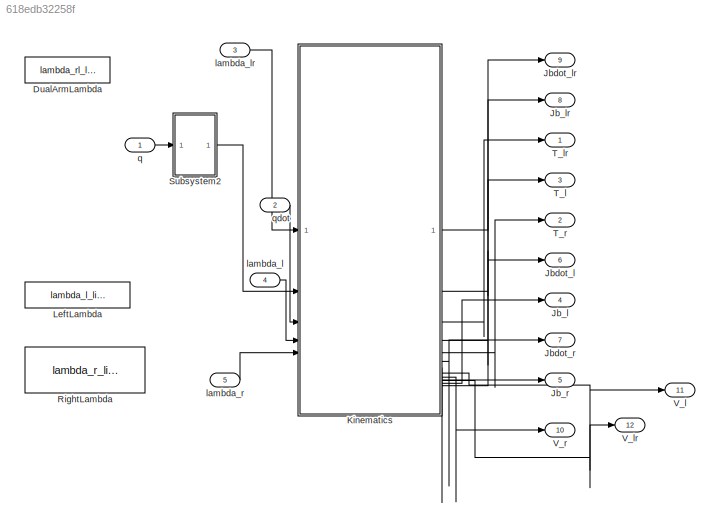
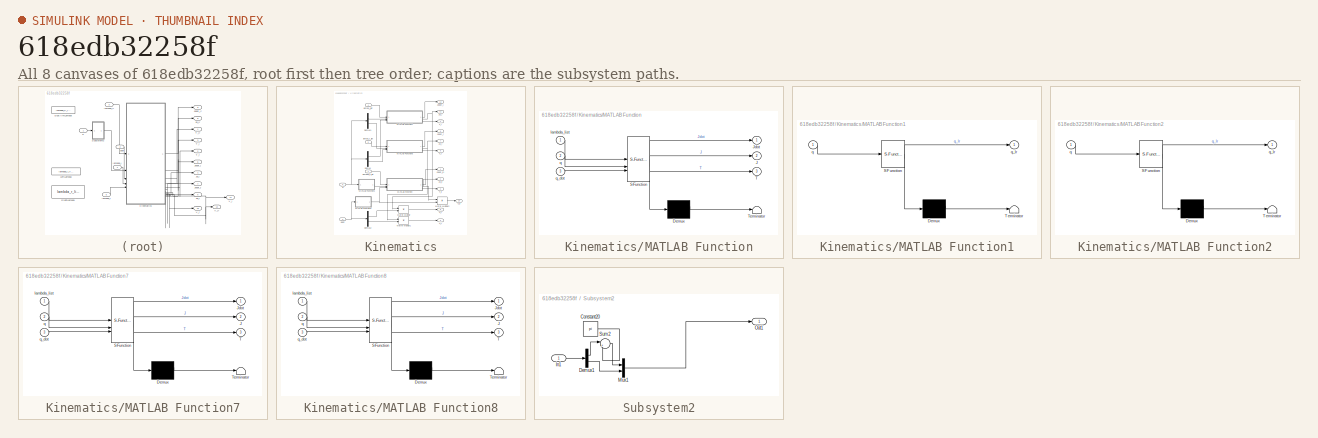
[diagram: thumbnail index - all 8 canvases of the model, root first then tree order]
MODEL slx_618edb32258f
KIND model
CONFIG AbsTol = auto
CONFIG EnableMultiTasking = off
CONFIG FixedStep = 0.001
CONFIG MaxStep = auto
CONFIG MinStep = auto
CONFIG RelTol = 1e-3
CONFIG SampleTimeConstraint = Unconstrained
CONFIG SolverName = FixedStepDiscrete
CONFIG StartTime = 0.0
CONFIG StopTime = Inf
WORKSPACE source: mxarray member
WORKSPACE robot: robotics.RigidBodyTree (value not decoded)
BLOCK [Constant] DualArmLambda
  Commented = on
  Value = lambda_rl_list
BLOCK [Outport] Jb_l
  Port = 4
BLOCK [Outport] Jb_lr
  Port = 8
BLOCK [Outport] Jb_r
  Port = 5
BLOCK [Outport] Jbdot_l
  Port = 6
BLOCK [Outport] Jbdot_lr
  Port = 9
BLOCK [Outport] Jbdot_r
  Port = 7
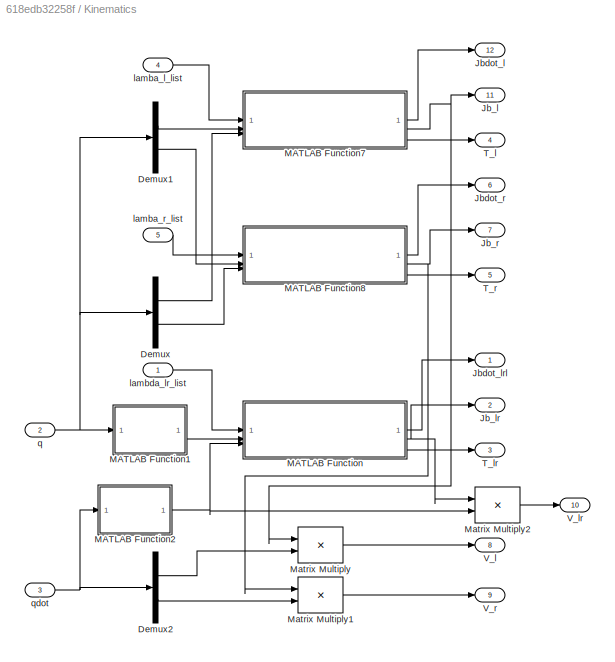
BLOCK [SubSystem] Kinematics
BLOCK [Demux] Kinematics/Demux
  Outputs = 2
BLOCK [Demux] Kinematics/Demux1
  Outputs = 2
BLOCK [Demux] Kinematics/Demux2
  Outputs = 2
BLOCK [Outport] Kinematics/Jb_l
  Port = 11
BLOCK [Outport] Kinematics/Jb_lr
  Port = 2
BLOCK [Outport] Kinematics/Jb_r
  Port = 7
BLOCK [Outport] Kinematics/Jbdot_l
  Port = 12
BLOCK [Outport] Kinematics/Jbdot_lrl
BLOCK [Outport] Kinematics/Jbdot_r
  Port = 6
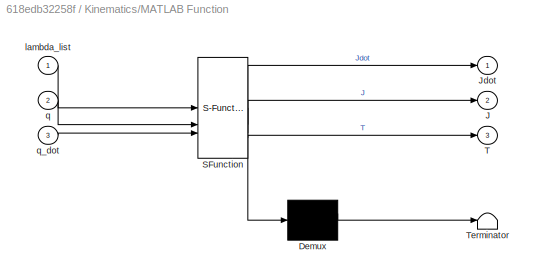
BLOCK [SubSystem] Kinematics/MATLAB Function
  ErrorFcn = Stateflow.Translate.translate
  PermitHierarchicalResolution = ExplicitOnly
  SFBlockType = MATLAB Function
  TreatAsAtomicUnit = on
BLOCK [Demux] Kinematics/MATLAB Function/ Demux 
  Outputs = 1
BLOCK [S-Function] Kinematics/MATLAB Function/ SFunction 
  EnableBusSupport = on
  FunctionName = sf_sfun
  PortCounts = [3 4]
  SFcnIsStateOwnerBlock = off
  SFunctionDeploymentMode = off
  Tag = Stateflow S-Function 2
BLOCK [Terminator] Kinematics/MATLAB Function/ Terminator 
BLOCK [Outport] Kinematics/MATLAB Function/J
  Port = 2
BLOCK [Outport] Kinematics/MATLAB Function/Jdot
BLOCK [Outport] Kinematics/MATLAB Function/T
  Port = 3
BLOCK [Inport] Kinematics/MATLAB Function/lambda_list
BLOCK [Inport] Kinematics/MATLAB Function/q
  Port = 2
BLOCK [Inport] Kinematics/MATLAB Function/q_dot
  Port = 3
BLOCK [SubSystem] Kinematics/MATLAB Function1
  ErrorFcn = Stateflow.Translate.translate
  PermitHierarchicalResolution = ExplicitOnly
  SFBlockType = MATLAB Function
  TreatAsAtomicUnit = on
BLOCK [Demux] Kinematics/MATLAB Function1/ Demux 
  Outputs = 1
BLOCK [S-Function] Kinematics/MATLAB Function1/ SFunction 
  EnableBusSupport = on
  FunctionName = sf_sfun
  PortCounts = [1 2]
  SFcnIsStateOwnerBlock = off
  SFunctionDeploymentMode = off
  Tag = Stateflow S-Function 1
BLOCK [Terminator] Kinematics/MATLAB Function1/ Terminator 
BLOCK [Inport] Kinematics/MATLAB Function1/q
BLOCK [Outport] Kinematics/MATLAB Function1/q_lr
BLOCK [SubSystem] Kinematics/MATLAB Function2
  ErrorFcn = Stateflow.Translate.translate
  PermitHierarchicalResolution = ExplicitOnly
  SFBlockType = MATLAB Function
  TreatAsAtomicUnit = on
BLOCK [Demux] Kinematics/MATLAB Function2/ Demux 
  Outputs = 1
BLOCK [S-Function] Kinematics/MATLAB Function2/ SFunction 
  EnableBusSupport = on
  FunctionName = sf_sfun
  PortCounts = [1 2]
  SFcnIsStateOwnerBlock = off
  SFunctionDeploymentMode = off
  Tag = Stateflow S-Function 3
BLOCK [Terminator] Kinematics/MATLAB Function2/ Terminator 
BLOCK [Inport] Kinematics/MATLAB Function2/q
BLOCK [Outport] Kinematics/MATLAB Function2/q_lr
BLOCK [SubSystem] Kinematics/MATLAB Function7
  ErrorFcn = Stateflow.Translate.translate
  PermitHierarchicalResolution = ExplicitOnly
  SFBlockType = MATLAB Function
  TreatAsAtomicUnit = on
BLOCK [Demux] Kinematics/MATLAB Function7/ Demux 
  Outputs = 1
BLOCK [S-Function] Kinematics/MATLAB Function7/ SFunction 
  EnableBusSupport = on
  FunctionName = sf_sfun
  PortCounts = [3 4]
  SFcnIsStateOwnerBlock = off
  SFunctionDeploymentMode = off
  Tag = Stateflow S-Function 11
BLOCK [Terminator] Kinematics/MATLAB Function7/ Terminator 
BLOCK [Outport] Kinematics/MATLAB Function7/J
  Port = 2
BLOCK [Outport] Kinematics/MATLAB Function7/Jdot
BLOCK [Outport] Kinematics/MATLAB Function7/T
  Port = 3
BLOCK [Inport] Kinematics/MATLAB Function7/lambda_list
BLOCK [Inport] Kinematics/MATLAB Function7/q
  Port = 2
BLOCK [Inport] Kinematics/MATLAB Function7/q_dot
  Port = 3
BLOCK [SubSystem] Kinematics/MATLAB Function8
  ErrorFcn = Stateflow.Translate.translate
  PermitHierarchicalResolution = ExplicitOnly
  SFBlockType = MATLAB Function
  TreatAsAtomicUnit = on
BLOCK [Demux] Kinematics/MATLAB Function8/ Demux 
  Outputs = 1
BLOCK [S-Function] Kinematics/MATLAB Function8/ SFunction 
  EnableBusSupport = on
  FunctionName = sf_sfun
  PortCounts = [3 4]
  SFcnIsStateOwnerBlock = off
  SFunctionDeploymentMode = off
  Tag = Stateflow S-Function 12
BLOCK [Terminator] Kinematics/MATLAB Function8/ Terminator 
BLOCK [Outport] Kinematics/MATLAB Function8/J
  Port = 2
BLOCK [Outport] Kinematics/MATLAB Function8/Jdot
BLOCK [Outport] Kinematics/MATLAB Function8/T
  Port = 3
BLOCK [Inport] Kinematics/MATLAB Function8/lambda_list
BLOCK [Inport] Kinematics/MATLAB Function8/q
  Port = 2
BLOCK [Inport] Kinematics/MATLAB Function8/q_dot
  Port = 3
BLOCK [Product] Kinematics/Matrix Multiply
  Multiplication = Matrix(*)
BLOCK [Product] Kinematics/Matrix Multiply1
  Multiplication = Matrix(*)
BLOCK [Product] Kinematics/Matrix Multiply2
  Multiplication = Matrix(*)
BLOCK [Outport] Kinematics/T_l
  Port = 4
BLOCK [Outport] Kinematics/T_lr
  Port = 3
BLOCK [Outport] Kinematics/T_r
  Port = 5
BLOCK [Outport] Kinematics/V_l
  Port = 8
BLOCK [Outport] Kinematics/V_lr
  Port = 10
BLOCK [Outport] Kinematics/V_r
  Port = 9
BLOCK [Inport] Kinematics/lamba_l_list
  Port = 4
BLOCK [Inport] Kinematics/lamba_r_list
  Port = 5
BLOCK [Inport] Kinematics/lambda_lr_list
BLOCK [Inport] Kinematics/q
  Port = 2
BLOCK [Inport] Kinematics/qdot
  Port = 3
BLOCK [Constant] LeftLambda
  Commented = on
  Value = lambda_l_list
BLOCK [Constant] RightLambda
  Commented = on
  Value = lambda_r_list
BLOCK [SubSystem] Subsystem2
BLOCK [Constant] Subsystem2/Constant20
  Value = pi
BLOCK [Demux] Subsystem2/Demux1
  Outputs = [1,11]
BLOCK [Inport] Subsystem2/In1
BLOCK [Mux] Subsystem2/Mux1
  DisplayOption = bar
  Inputs = [1,11]
BLOCK [Outport] Subsystem2/Out1
BLOCK [Sum] Subsystem2/Sum2
  Inputs = |++
BLOCK [Outport] T_l
  Port = 3
BLOCK [Outport] T_lr
BLOCK [Outport] T_r
  Port = 2
BLOCK [Outport] V_l
  Port = 11
BLOCK [Outport] V_lr
  Port = 12
BLOCK [Outport] V_r
  Port = 10
BLOCK [Inport] lambda_l
  Port = 4
  PortDimensions = [6,7]
BLOCK [Inport] lambda_lr
  Port = 3
  PortDimensions = [6,13]
BLOCK [Inport] lambda_r
  Port = 5
  PortDimensions = [6,7]
BLOCK [Inport] q
  PortDimensions = 12
BLOCK [Inport] qdot
  Port = 2
  PortDimensions = 12
LINE Kinematics/Demux1:1 -> Kinematics/MATLAB Function7:2
LINE Kinematics/Demux1:2 -> Kinematics/MATLAB Function8:2
LINE Kinematics/Demux2:1 -> Kinematics/Matrix Multiply:2
LINE Kinematics/Demux2:2 -> Kinematics/Matrix Multiply1:2
LINE Kinematics/Demux:1 -> Kinematics/MATLAB Function7:3
LINE Kinematics/Demux:2 -> Kinematics/MATLAB Function8:3
LINE Kinematics/MATLAB Function1:1 -> Kinematics/MATLAB Function:2
NET Kinematics/MATLAB Function2:1 -> Kinematics/MATLAB Function:3, Kinematics/Matrix Multiply2:2
LINE Kinematics/MATLAB Function7:1 -> Kinematics/Jbdot_l:1
NET Kinematics/MATLAB Function7:2 -> Kinematics/Jb_l:1, Kinematics/Matrix Multiply:1
LINE Kinematics/MATLAB Function7:3 -> Kinematics/T_l:1
LINE Kinematics/MATLAB Function8:1 -> Kinematics/Jbdot_r:1
NET Kinematics/MATLAB Function8:2 -> Kinematics/Jb_r:1, Kinematics/Matrix Multiply1:1
LINE Kinematics/MATLAB Function8:3 -> Kinematics/T_r:1
LINE Kinematics/MATLAB Function:1 -> Kinematics/Jbdot_lrl:1
NET Kinematics/MATLAB Function:2 -> Kinematics/Jb_lr:1, Kinematics/Matrix Multiply2:1
LINE Kinematics/MATLAB Function:3 -> Kinematics/T_lr:1
LINE Kinematics/Matrix Multiply1:1 -> Kinematics/V_r:1
LINE Kinematics/Matrix Multiply2:1 -> Kinematics/V_lr:1
LINE Kinematics/Matrix Multiply:1 -> Kinematics/V_l:1
LINE Kinematics/lamba_l_list:1 -> Kinematics/MATLAB Function7:1
LINE Kinematics/lamba_r_list:1 -> Kinematics/MATLAB Function8:1
LINE Kinematics/lambda_lr_list:1 -> Kinematics/MATLAB Function:1
NET Kinematics/q:1 -> Kinematics/Demux1:1, Kinematics/Demux:1, Kinematics/MATLAB Function1:1
NET Kinematics/qdot:1 -> Kinematics/Demux2:1, Kinematics/MATLAB Function2:1
LINE Kinematics:1 -> Jbdot_lr:1
LINE Kinematics:10 -> V_lr:1
LINE Kinematics:11 -> Jb_l:1
LINE Kinematics:12 -> Jbdot_l:1
LINE Kinematics:2 -> Jb_lr:1
LINE Kinematics:3 -> T_lr:1
LINE Kinematics:4 -> T_l:1
LINE Kinematics:5 -> T_r:1
LINE Kinematics:6 -> Jbdot_r:1
LINE Kinematics:7 -> Jb_r:1
LINE Kinematics:8 -> V_l:1
LINE Kinematics:9 -> V_r:1
LINE Subsystem2/Constant20:1 -> Subsystem2/Sum2:2
LINE Subsystem2/Demux1:1 -> Subsystem2/Sum2:1
LINE Subsystem2/Demux1:2 -> Subsystem2/Mux1:2
LINE Subsystem2/In1:1 -> Subsystem2/Demux1:1
LINE Subsystem2/Mux1:1 -> Subsystem2/Out1:1
LINE Subsystem2/Sum2:1 -> Subsystem2/Mux1:1
LINE Subsystem2:1 -> Kinematics:2
LINE lambda_l:1 -> Kinematics:4
LINE lambda_lr:1 -> Kinematics:1
LINE lambda_r:1 -> Kinematics:5
LINE q:1 -> Subsystem2:1
LINE qdot:1 -> Kinematics:3
note: NET lines group one-source signal fan-out (src -> all destinations, sorted); 1:1 wires keep LINE
CHART Kinematics/MATLAB Function1 states=1 transitions=1
  STATE_LABEL 'eML_blk_kernel()'
  STATE_LABEL 'SCRIPT:\nfunction q_lr = getQrel(q)\nq_lr = zeros(12,1);\nq_lr = [-flip(q(1:6));q(7:end)];\n'
CHART Kinematics/MATLAB Function states=1 transitions=1
  STATE_LABEL 'eML_blk_kernel()'
  STATE_LABEL "SCRIPT:\nfunction [Jdot,J,T]=FKJacobian(lambda_list,q,q_dot)\n    Ti = eye(4);\n    [m,n]=size(lambda_list);\n    lamda_z = [0,0,0,0,0,1]';\n    ez = [0,0,1]';\n    N = length(q);\n    J = zeros(6,N);\n    Jdot=zeros(6,N);\n  \n    Ti = exp6(lambda_list(:,end));\n    [Ri,pi] = TransToRp(Ti);\n    J(:,end)=[Ri'*VecToso3(ez)*pi;Ri'*ez];\n    for i =N:-1:1\n        Ti = exp6(lambda_list(:,i))*exp6(lamda_z*q(i))*Ti...<+445ch>"  <repeated x3 — deduplicated; at blocks: MATLAB Function, MATLAB Function7, MATLAB Function8>
CHART Kinematics/MATLAB Function2 states=1 transitions=1
  STATE_LABEL 'eML_blk_kernel()'
  STATE_LABEL 'SCRIPT:\nfunction q_lr = getQrel(q)\nq_lr = zeros(12,1);\nq_lr = [-flip(q(1:6));q(7:end)];\n'
CHART Kinematics/MATLAB Function7 states=1 transitions=1
  STATE_LABEL 'eML_blk_kernel()'
CHART Kinematics/MATLAB Function8 states=1 transitions=1
  STATE_LABEL 'eML_blk_kernel()'
CHART  states=0 transitions=0
CHART  states=0 transitions=0
CHART  states=0 transitions=0
CHART  states=0 transitions=0
CHART  states=0 transitions=0
